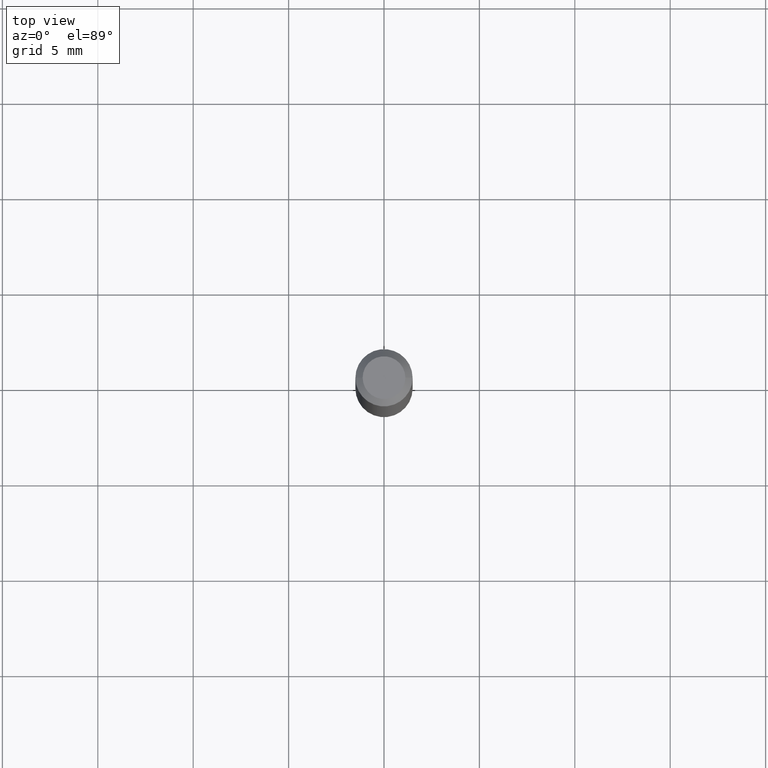
[diagram: clean part render]
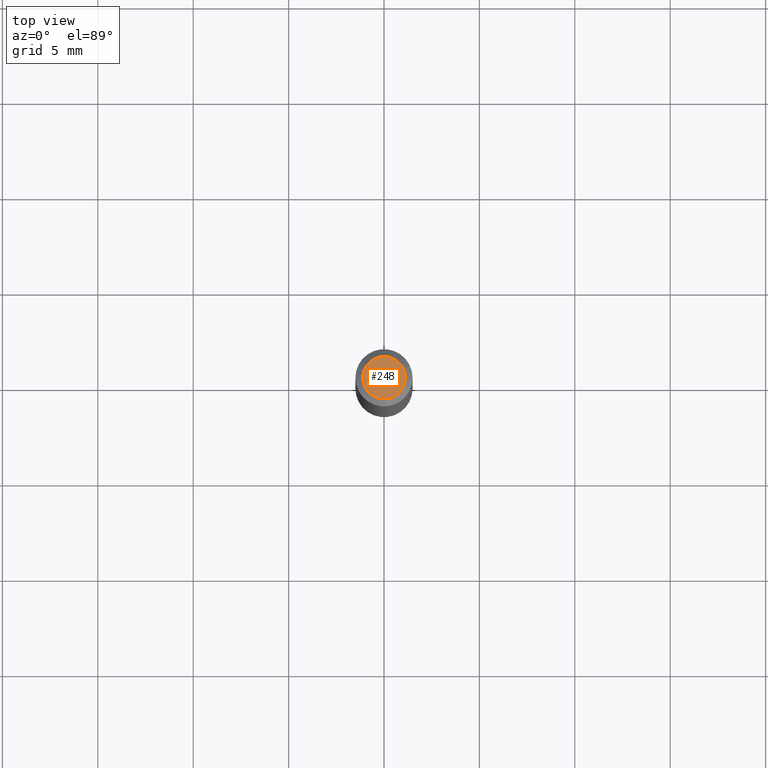
[diagram: same view with one face highlighted and labeled with its STEP entity id]
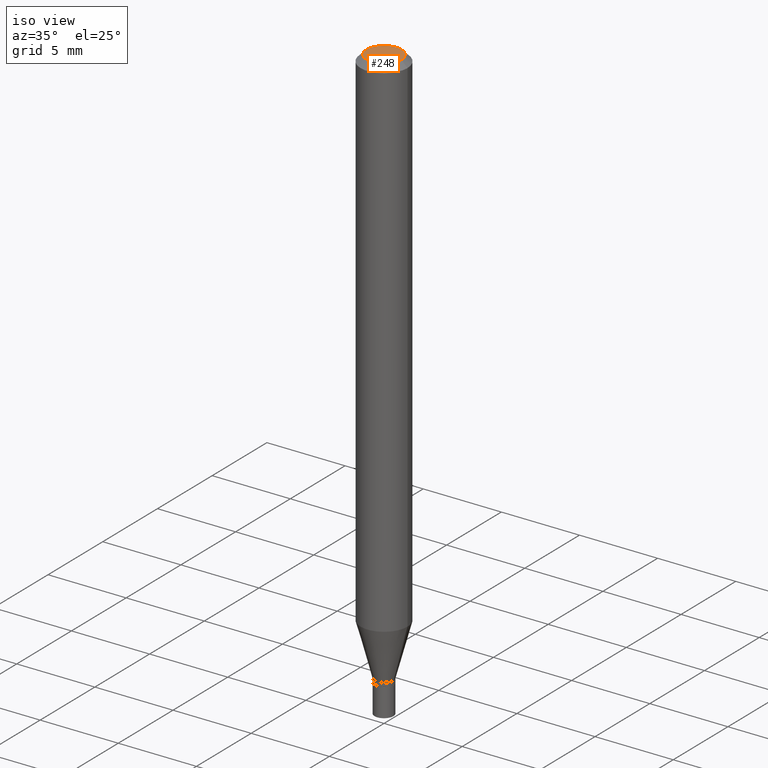
[diagram: same view with one face highlighted and labeled with its STEP entity id]
A machine part, top view. The second image highlights one B-rep face of the part: STEP entity #248.
A second angle (iso view) of the same face is appended — the face is thin or edge-on in the first view.
In plain terms, the highlighted planar face has unit normal (0, -0, -1).
Its self-contained STEP definition (entity closure, byte-faithful):
#10 = EDGE_CURVE ( 'NONE', #373, #110, #237, .T. ) ;
#17 = CARTESIAN_POINT ( 'NONE',  ( -0.04404999999999999888, 3.337856159934028715E-16, -3.279237254660510174E-16 ) ) ;
#29 = PLANE ( 'NONE',  #167 ) ;
#47 = CIRCLE ( 'NONE', #53, 0.04404999999999999888 ) ;
#53 = AXIS2_PLACEMENT_3D ( 'NONE', #130, #199, #284 ) ;
#61 = CARTESIAN_POINT ( 'NONE',  ( 8.019272414352406998E-45, -1.144939568028632061E-30, -3.279237254660487495E-16 ) ) ;
#63 = FACE_OUTER_BOUND ( 'NONE', #286, .T. ) ;
#67 = DIRECTION ( 'NONE',  ( 1.000000000000000000, -6.982962677686265922E-15, 4.819687581474398999E-29 ) ) ;
#76 = CARTESIAN_POINT ( 'NONE',  ( 0.04404999999999999888, -3.798447818264465995E-16, -3.279237254660463336E-16 ) ) ;
#110 = VERTEX_POINT ( 'NONE', #17 ) ;
#118 = ORIENTED_EDGE ( 'NONE', *, *, #10, .T. ) ;
#130 = CARTESIAN_POINT ( 'NONE',  ( 8.019272414352406998E-45, -1.144939568028632061E-30, -3.279237254660487495E-16 ) ) ;
#135 = EDGE_CURVE ( 'NONE', #110, #373, #47, .T. ) ;
#144 = DIRECTION ( 'NONE',  ( -1.000000000000000000, 6.982962677686265922E-15, -4.876176775795935793E-29 ) ) ;
#167 = AXIS2_PLACEMENT_3D ( 'NONE', #444, #399, #144 ) ;
#199 = DIRECTION ( 'NONE',  ( -2.445468806185136597E-29, 3.491481338843145583E-15, 1.000000000000000000 ) ) ;
#237 = CIRCLE ( 'NONE', #384, 0.04404999999999999888 ) ;
#248 = ADVANCED_FACE ( 'NONE', ( #63 ), #29, .F. ) ;
#278 = DIRECTION ( 'NONE',  ( -2.445468806185136597E-29, 3.491481338843145583E-15, 1.000000000000000000 ) ) ;
#284 = DIRECTION ( 'NONE',  ( 1.000000000000000000, -6.982962677686265922E-15, 4.819687581474398999E-29 ) ) ;
#286 = EDGE_LOOP ( 'NONE', ( #302, #118 ) ) ;
#302 = ORIENTED_EDGE ( 'NONE', *, *, #135, .T. ) ;
#373 = VERTEX_POINT ( 'NONE', #76 ) ;
#384 = AXIS2_PLACEMENT_3D ( 'NONE', #61, #278, #67 ) ;
#399 = DIRECTION ( 'NONE',  ( 2.438088387897960049E-29, -3.491481338843145188E-15, -1.000000000000000000 ) ) ;
#444 = CARTESIAN_POINT ( 'NONE',  ( 3.075995059520799729E-16, 0.04404999999999999888, -3.177616157090649282E-16 ) ) ;